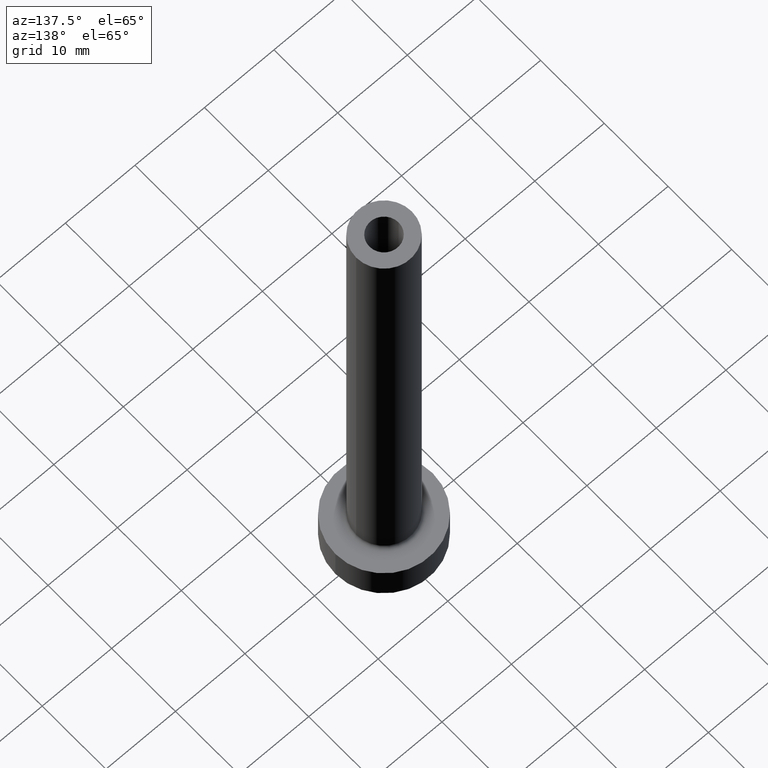
[diagram: clean part render]
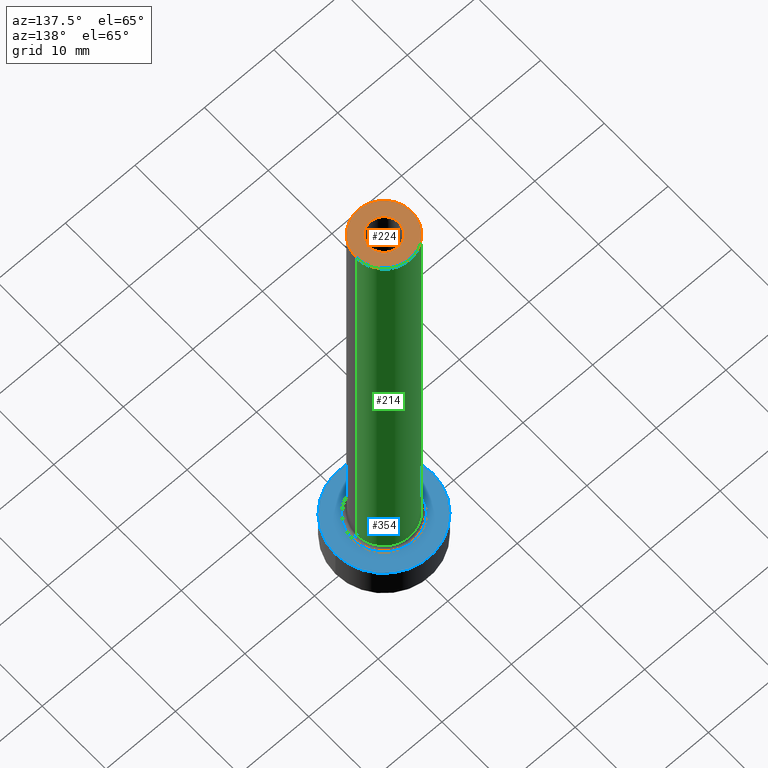
[diagram: same view with three faces highlighted in distinct colors, each labeled with its STEP entity id]
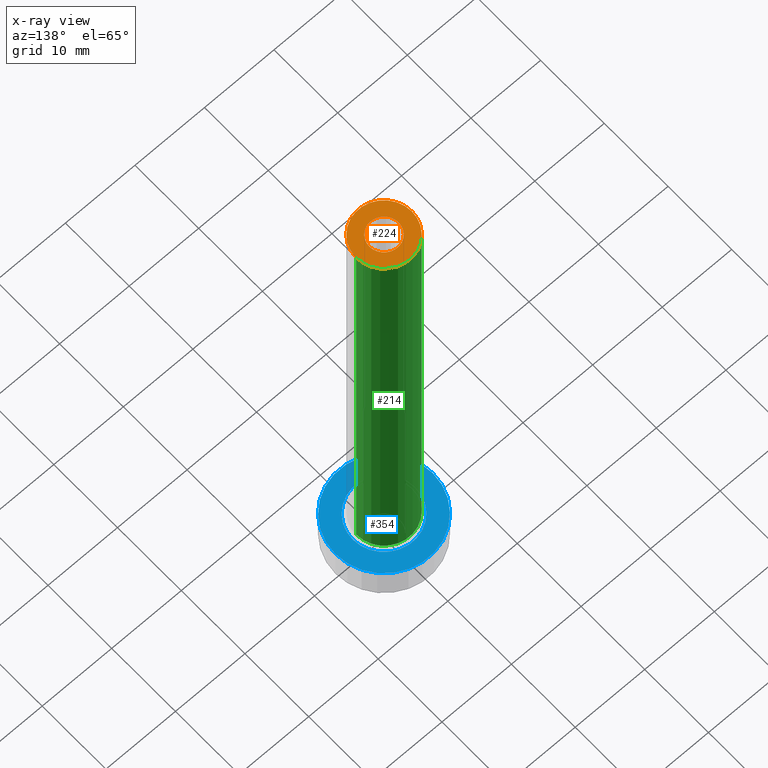
[diagram: x-ray of the same camera — body ghosted, the three highlighted faces saturated]
A machine part, auxiliary view with three faces highlighted in distinct colors.
The next image is the same camera in x-ray (body ghosted, the three faces saturated) — at least one of them is partly hidden behind the body in this view.
Their STEP definitions:

[orange] entity #224 — the highlighted planar face has unit normal (0, 0, 1).
#3 = AXIS2_PLACEMENT_3D ( 'NONE', #145, #357, #285 ) ;
#15 = EDGE_CURVE ( 'NONE', #80, #219, #186, .T. ) ;
#34 = DIRECTION ( 'NONE',  ( 0.000000000000000000, 0.000000000000000000, 1.000000000000000000 ) ) ;
#36 = EDGE_CURVE ( 'NONE', #219, #80, #333, .T. ) ;
#40 = DIRECTION ( 'NONE',  ( 1.000000000000000000, 0.000000000000000000, 0.000000000000000000 ) ) ;
#63 = CIRCLE ( 'NONE', #197, 2.100000000000000089 ) ;
#64 = DIRECTION ( 'NONE',  ( 0.000000000000000000, 0.000000000000000000, 1.000000000000000000 ) ) ;
#65 = EDGE_CURVE ( 'NONE', #187, #242, #375, .T. ) ;
#66 = FACE_BOUND ( 'NONE', #351, .T. ) ;
#80 = VERTEX_POINT ( 'NONE', #202 ) ;
#82 = DIRECTION ( 'NONE',  ( 1.000000000000000000, 0.000000000000000000, 0.000000000000000000 ) ) ;
#90 = DIRECTION ( 'NONE',  ( 1.000000000000000000, 0.000000000000000000, 0.000000000000000000 ) ) ;
#98 = CARTESIAN_POINT ( 'NONE',  ( 0.000000000000000000, 0.000000000000000000, 75.00000000000001421 ) ) ;
#100 = CARTESIAN_POINT ( 'NONE',  ( 0.000000000000000000, 0.000000000000000000, 75.00000000000001421 ) ) ;
#142 = ORIENTED_EDGE ( 'NONE', *, *, #36, .T. ) ;
#145 = CARTESIAN_POINT ( 'NONE',  ( 0.000000000000000000, 0.000000000000000000, 75.00000000000001421 ) ) ;
#150 = CARTESIAN_POINT ( 'NONE',  ( -2.100000000000000089, 0.000000000000000000, 75.00000000000001421 ) ) ;
#178 = AXIS2_PLACEMENT_3D ( 'NONE', #429, #34, #90 ) ;
#179 = CARTESIAN_POINT ( 'NONE',  ( 2.100000000000000089, 2.571758278209441464E-16, 75.00000000000001421 ) ) ;
#180 = DIRECTION ( 'NONE',  ( 1.000000000000000000, 0.000000000000000000, -0.000000000000000000 ) ) ;
#186 = CIRCLE ( 'NONE', #3, 4.000000000000000000 ) ;
#187 = VERTEX_POINT ( 'NONE', #150 ) ;
#197 = AXIS2_PLACEMENT_3D ( 'NONE', #314, #278, #40 ) ;
#202 = CARTESIAN_POINT ( 'NONE',  ( 4.000000000000000000, 4.898587196589412829E-16, 75.00000000000001421 ) ) ;
#219 = VERTEX_POINT ( 'NONE', #397 ) ;
#224 = ADVANCED_FACE ( 'NONE', ( #66, #252 ), #457, .T. ) ;
#242 = VERTEX_POINT ( 'NONE', #179 ) ;
#250 = EDGE_CURVE ( 'NONE', #242, #187, #63, .T. ) ;
#252 = FACE_OUTER_BOUND ( 'NONE', #380, .T. ) ;
#278 = DIRECTION ( 'NONE',  ( 0.000000000000000000, 0.000000000000000000, 1.000000000000000000 ) ) ;
#285 = DIRECTION ( 'NONE',  ( 1.000000000000000000, 0.000000000000000000, 0.000000000000000000 ) ) ;
#314 = CARTESIAN_POINT ( 'NONE',  ( 0.000000000000000000, 0.000000000000000000, 75.00000000000001421 ) ) ;
#333 = CIRCLE ( 'NONE', #346, 4.000000000000000000 ) ;
#341 = AXIS2_PLACEMENT_3D ( 'NONE', #98, #64, #180 ) ;
#342 = ORIENTED_EDGE ( 'NONE', *, *, #15, .T. ) ;
#346 = AXIS2_PLACEMENT_3D ( 'NONE', #100, #394, #82 ) ;
#351 = EDGE_LOOP ( 'NONE', ( #449, #437 ) ) ;
#357 = DIRECTION ( 'NONE',  ( 0.000000000000000000, 0.000000000000000000, 1.000000000000000000 ) ) ;
#375 = CIRCLE ( 'NONE', #178, 2.100000000000000089 ) ;
#380 = EDGE_LOOP ( 'NONE', ( #142, #342 ) ) ;
#394 = DIRECTION ( 'NONE',  ( 0.000000000000000000, 0.000000000000000000, 1.000000000000000000 ) ) ;
#397 = CARTESIAN_POINT ( 'NONE',  ( -4.000000000000000000, 0.000000000000000000, 75.00000000000001421 ) ) ;
#429 = CARTESIAN_POINT ( 'NONE',  ( 0.000000000000000000, 0.000000000000000000, 75.00000000000001421 ) ) ;
#437 = ORIENTED_EDGE ( 'NONE', *, *, #250, .F. ) ;
#449 = ORIENTED_EDGE ( 'NONE', *, *, #65, .F. ) ;
#457 = PLANE ( 'NONE',  #341 ) ;

[blue] entity #354 — the highlighted planar face has unit normal (0, 0, 1).
#10 = DIRECTION ( 'NONE',  ( 0.000000000000000000, 0.000000000000000000, 1.000000000000000000 ) ) ;
#11 = ORIENTED_EDGE ( 'NONE', *, *, #340, .T. ) ;
#35 = CARTESIAN_POINT ( 'NONE',  ( 0.000000000000000000, 0.000000000000000000, 5.000000000000000000 ) ) ;
#38 = DIRECTION ( 'NONE',  ( 0.000000000000000000, 0.000000000000000000, 1.000000000000000000 ) ) ;
#39 = VERTEX_POINT ( 'NONE', #378 ) ;
#41 = EDGE_LOOP ( 'NONE', ( #48, #190 ) ) ;
#45 = DIRECTION ( 'NONE',  ( 1.000000000000000000, 0.000000000000000000, 0.000000000000000000 ) ) ;
#48 = ORIENTED_EDGE ( 'NONE', *, *, #286, .T. ) ;
#85 = AXIS2_PLACEMENT_3D ( 'NONE', #87, #10, #298 ) ;
#87 = CARTESIAN_POINT ( 'NONE',  ( 0.000000000000000000, 0.000000000000000000, 5.000000000000000000 ) ) ;
#127 = PLANE ( 'NONE',  #85 ) ;
#134 = CARTESIAN_POINT ( 'NONE',  ( -7.000000000000000000, 0.000000000000000000, 5.000000000000000000 ) ) ;
#159 = AXIS2_PLACEMENT_3D ( 'NONE', #265, #200, #300 ) ;
#174 = AXIS2_PLACEMENT_3D ( 'NONE', #35, #336, #262 ) ;
#175 = EDGE_CURVE ( 'NONE', #382, #39, #221, .T. ) ;
#190 = ORIENTED_EDGE ( 'NONE', *, *, #301, .T. ) ;
#200 = DIRECTION ( 'NONE',  ( 0.000000000000000000, 0.000000000000000000, 1.000000000000000000 ) ) ;
#204 = VERTEX_POINT ( 'NONE', #339 ) ;
#206 = FACE_OUTER_BOUND ( 'NONE', #296, .T. ) ;
#217 = AXIS2_PLACEMENT_3D ( 'NONE', #396, #253, #399 ) ;
#221 = CIRCLE ( 'NONE', #411, 7.000000000000000000 ) ;
#222 = CARTESIAN_POINT ( 'NONE',  ( -4.500000000000000888, 5.510910596163088569E-16, 5.000000000000002665 ) ) ;
#233 = CIRCLE ( 'NONE', #159, 7.000000000000000000 ) ;
#253 = DIRECTION ( 'NONE',  ( -0.000000000000000000, -0.000000000000000000, -1.000000000000000000 ) ) ;
#262 = DIRECTION ( 'NONE',  ( 1.000000000000000000, 0.000000000000000000, 0.000000000000000000 ) ) ;
#265 = CARTESIAN_POINT ( 'NONE',  ( 0.000000000000000000, 0.000000000000000000, 5.000000000000000000 ) ) ;
#267 = FACE_BOUND ( 'NONE', #41, .T. ) ;
#286 = EDGE_CURVE ( 'NONE', #204, #288, #328, .T. ) ;
#288 = VERTEX_POINT ( 'NONE', #222 ) ;
#293 = ORIENTED_EDGE ( 'NONE', *, *, #175, .T. ) ;
#296 = EDGE_LOOP ( 'NONE', ( #293, #11 ) ) ;
#297 = CIRCLE ( 'NONE', #174, 4.500000000000000888 ) ;
#298 = DIRECTION ( 'NONE',  ( 1.000000000000000000, 0.000000000000000000, -0.000000000000000000 ) ) ;
#301 = EDGE_CURVE ( 'NONE', #288, #204, #297, .T. ) ;
#300 = DIRECTION ( 'NONE',  ( 1.000000000000000000, 0.000000000000000000, 0.000000000000000000 ) ) ;
#328 = CIRCLE ( 'NONE', #217, 4.500000000000000888 ) ;
#336 = DIRECTION ( 'NONE',  ( -0.000000000000000000, -0.000000000000000000, -1.000000000000000000 ) ) ;
#339 = CARTESIAN_POINT ( 'NONE',  ( 4.500000000000000888, 0.000000000000000000, 5.000000000000002665 ) ) ;
#340 = EDGE_CURVE ( 'NONE', #39, #382, #233, .T. ) ;
#354 = ADVANCED_FACE ( 'NONE', ( #267, #206 ), #127, .T. ) ;
#378 = CARTESIAN_POINT ( 'NONE',  ( 7.000000000000000000, 8.572527594031473190E-16, 5.000000000000000000 ) ) ;
#382 = VERTEX_POINT ( 'NONE', #134 ) ;
#396 = CARTESIAN_POINT ( 'NONE',  ( 0.000000000000000000, 0.000000000000000000, 5.000000000000000000 ) ) ;
#399 = DIRECTION ( 'NONE',  ( 1.000000000000000000, 0.000000000000000000, 0.000000000000000000 ) ) ;
#404 = CARTESIAN_POINT ( 'NONE',  ( 0.000000000000000000, 0.000000000000000000, 5.000000000000000000 ) ) ;
#411 = AXIS2_PLACEMENT_3D ( 'NONE', #404, #38, #45 ) ;

[green] entity #214 — the highlighted cylindrical surface (partial cylindrical patch) has radius 4 mm, axis along (-0, -0, -1).
#3 = AXIS2_PLACEMENT_3D ( 'NONE', #145, #357, #285 ) ;
#9 = VERTEX_POINT ( 'NONE', #138 ) ;
#13 = VECTOR ( 'NONE', #50, 1000.000000000000000 ) ;
#14 = DIRECTION ( 'NONE',  ( 0.000000000000000000, 0.000000000000000000, 1.000000000000000000 ) ) ;
#15 = EDGE_CURVE ( 'NONE', #80, #219, #186, .T. ) ;
#26 = DIRECTION ( 'NONE',  ( -0.000000000000000000, -0.000000000000000000, -1.000000000000000000 ) ) ;
#50 = DIRECTION ( 'NONE',  ( -0.000000000000000000, -0.000000000000000000, -1.000000000000000000 ) ) ;
#54 = CARTESIAN_POINT ( 'NONE',  ( 0.000000000000000000, 0.000000000000000000, 5.500000000000005329 ) ) ;
#77 = VECTOR ( 'NONE', #372, 1000.000000000000000 ) ;
#78 = EDGE_CURVE ( 'NONE', #9, #259, #203, .T. ) ;
#80 = VERTEX_POINT ( 'NONE', #202 ) ;
#96 = FACE_OUTER_BOUND ( 'NONE', #239, .T. ) ;
#124 = ORIENTED_EDGE ( 'NONE', *, *, #78, .T. ) ;
#133 = CARTESIAN_POINT ( 'NONE',  ( 0.000000000000000000, 0.000000000000000000, 75.00000000000001421 ) ) ;
#138 = CARTESIAN_POINT ( 'NONE',  ( 4.000000000000000000, 4.898587196589412829E-16, 5.500000000000005329 ) ) ;
#139 = CYLINDRICAL_SURFACE ( 'NONE', #311, 4.000000000000000000 ) ;
#145 = CARTESIAN_POINT ( 'NONE',  ( 0.000000000000000000, 0.000000000000000000, 75.00000000000001421 ) ) ;
#169 = EDGE_CURVE ( 'NONE', #80, #9, #325, .T. ) ;
#172 = AXIS2_PLACEMENT_3D ( 'NONE', #54, #14, #415 ) ;
#186 = CIRCLE ( 'NONE', #3, 4.000000000000000000 ) ;
#194 = LINE ( 'NONE', #263, #13 ) ;
#202 = CARTESIAN_POINT ( 'NONE',  ( 4.000000000000000000, 4.898587196589412829E-16, 75.00000000000001421 ) ) ;
#203 = CIRCLE ( 'NONE', #172, 4.000000000000000000 ) ;
#208 = ORIENTED_EDGE ( 'NONE', *, *, #409, .F. ) ;
#214 = ADVANCED_FACE ( 'NONE', ( #96 ), #139, .T. ) ;
#219 = VERTEX_POINT ( 'NONE', #397 ) ;
#239 = EDGE_LOOP ( 'NONE', ( #363, #454, #124, #208 ) ) ;
#259 = VERTEX_POINT ( 'NONE', #284 ) ;
#263 = CARTESIAN_POINT ( 'NONE',  ( -4.000000000000000000, 0.000000000000000000, 75.00000000000001421 ) ) ;
#284 = CARTESIAN_POINT ( 'NONE',  ( -4.000000000000000000, 0.000000000000000000, 5.500000000000005329 ) ) ;
#285 = DIRECTION ( 'NONE',  ( 1.000000000000000000, 0.000000000000000000, 0.000000000000000000 ) ) ;
#291 = CARTESIAN_POINT ( 'NONE',  ( 4.000000000000000000, 4.898587196589412829E-16, 75.00000000000001421 ) ) ;
#311 = AXIS2_PLACEMENT_3D ( 'NONE', #133, #26, #355 ) ;
#325 = LINE ( 'NONE', #291, #77 ) ;
#355 = DIRECTION ( 'NONE',  ( -1.000000000000000000, 0.000000000000000000, 0.000000000000000000 ) ) ;
#357 = DIRECTION ( 'NONE',  ( 0.000000000000000000, 0.000000000000000000, 1.000000000000000000 ) ) ;
#363 = ORIENTED_EDGE ( 'NONE', *, *, #15, .F. ) ;
#372 = DIRECTION ( 'NONE',  ( -0.000000000000000000, -0.000000000000000000, -1.000000000000000000 ) ) ;
#397 = CARTESIAN_POINT ( 'NONE',  ( -4.000000000000000000, 0.000000000000000000, 75.00000000000001421 ) ) ;
#409 = EDGE_CURVE ( 'NONE', #219, #259, #194, .T. ) ;
#415 = DIRECTION ( 'NONE',  ( 1.000000000000000000, 0.000000000000000000, 0.000000000000000000 ) ) ;
#454 = ORIENTED_EDGE ( 'NONE', *, *, #169, .T. ) ;